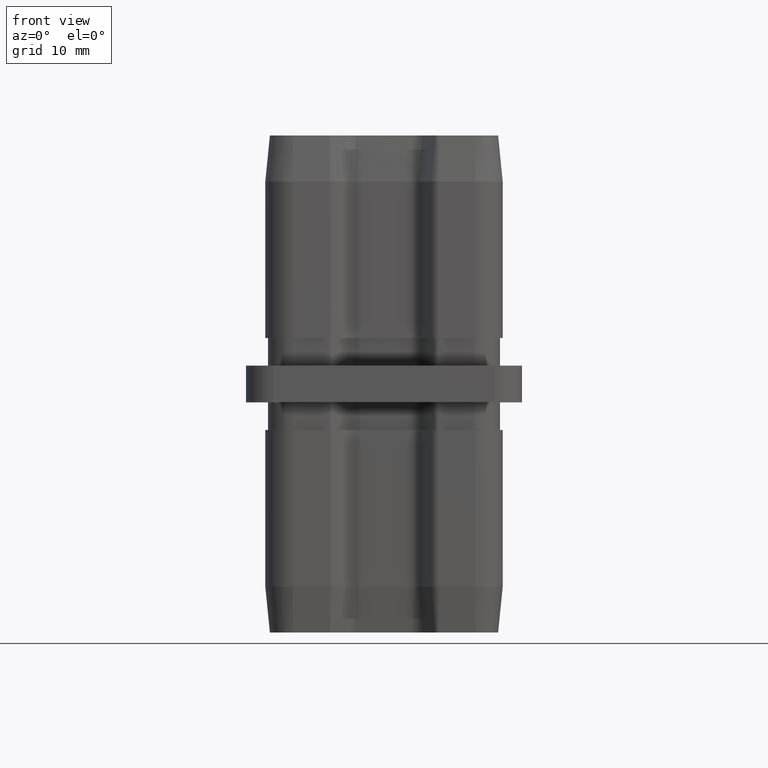
[diagram: clean part render]
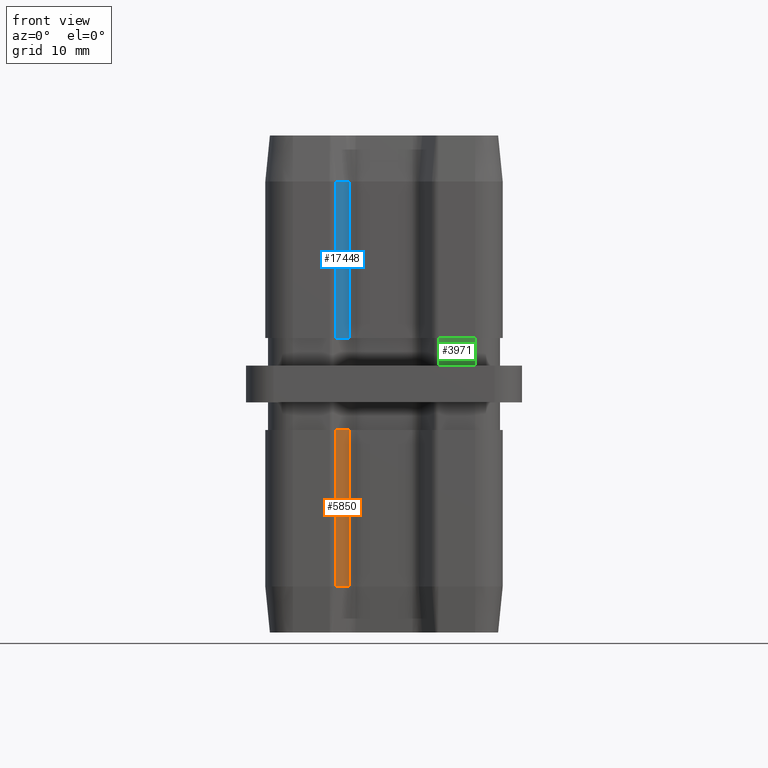
[diagram: same view with three faces highlighted in distinct colors, each labeled with its STEP entity id]
A machine part, front view with three faces highlighted in distinct colors.
Their STEP definitions:

[orange] entity #5850 — the highlighted planar face has unit normal (-0.7071, 0.7071, 0).
#430 = EDGE_CURVE ( 'NONE', #20154, #23990, #8736, .T. ) ;
#1363 = CARTESIAN_POINT ( 'NONE',  ( -5.207106781186544400, -22.60710678118655200, -22.00000000000000700 ) ) ;
#2066 = DIRECTION ( 'NONE',  ( -0.7071067811865484600, 0.7071067811865465700, 0.0000000000000000000 ) ) ;
#2141 = ORIENTED_EDGE ( 'NONE', *, *, #26574, .T. ) ;
#3837 = EDGE_CURVE ( 'NONE', #8081, #23990, #17745, .T. ) ;
#3948 = VECTOR ( 'NONE', #8808, 1000.000000000000000 ) ;
#3987 = VERTEX_POINT ( 'NONE', #4220 ) ;
#4220 = CARTESIAN_POINT ( 'NONE',  ( -3.792893218813467600, -21.19289321881346300, -5.000000000000000000 ) ) ;
#5033 = DIRECTION ( 'NONE',  ( -0.7071067811865462400, -0.7071067811865489100, 0.0000000000000000000 ) ) ;
#5850 = ADVANCED_FACE ( 'NONE', ( #23953 ), #12433, .F. ) ;
#6784 = VECTOR ( 'NONE', #14350, 1000.000000000000000 ) ;
#7898 = CARTESIAN_POINT ( 'NONE',  ( -5.207106781186544400, -22.60710678118655200, 27.00000000000000000 ) ) ;
#8081 = VERTEX_POINT ( 'NONE', #16026 ) ;
#8736 = LINE ( 'NONE', #7898, #6784 ) ;
#8808 = DIRECTION ( 'NONE',  ( -0.7071067811865462400, -0.7071067811865489100, 0.0000000000000000000 ) ) ;
#8899 = CARTESIAN_POINT ( 'NONE',  ( -3.792893218813467600, -21.19289321881346300, -5.000000000000000000 ) ) ;
#9613 = ORIENTED_EDGE ( 'NONE', *, *, #25109, .T. ) ;
#12433 = PLANE ( 'NONE',  #23197 ) ;
#12470 = EDGE_LOOP ( 'NONE', ( #21617, #2141, #9613, #25742 ) ) ;
#14350 = DIRECTION ( 'NONE',  ( 0.0000000000000000000, 0.0000000000000000000, -1.000000000000000000 ) ) ;
#14496 = CARTESIAN_POINT ( 'NONE',  ( -3.500000000000006700, -20.90000000000000900, 27.00000000000000000 ) ) ;
#15268 = VECTOR ( 'NONE', #19434, 1000.000000000000000 ) ;
#15329 = LINE ( 'NONE', #8899, #3948 ) ;
#16026 = CARTESIAN_POINT ( 'NONE',  ( -3.792893218813460500, -21.19289321881346700, -22.00000000000000000 ) ) ;
#16403 = VECTOR ( 'NONE', #5033, 1000.000000000000000 ) ;
#17745 = LINE ( 'NONE', #19223, #16403 ) ;
#18415 = DIRECTION ( 'NONE',  ( -0.7071067811865465700, -0.7071067811865484600, 0.0000000000000000000 ) ) ;
#19223 = CARTESIAN_POINT ( 'NONE',  ( -3.792893218813460500, -21.19289321881346700, -22.00000000000000000 ) ) ;
#19434 = DIRECTION ( 'NONE',  ( -0.0000000000000000000, -0.0000000000000000000, 1.000000000000000000 ) ) ;
#20154 = VERTEX_POINT ( 'NONE', #26116 ) ;
#21617 = ORIENTED_EDGE ( 'NONE', *, *, #3837, .F. ) ;
#21683 = CARTESIAN_POINT ( 'NONE',  ( -3.792893218813461000, -21.19289321881346300, -1.999999999999998200 ) ) ;
#23197 = AXIS2_PLACEMENT_3D ( 'NONE', #14496, #2066, #18415 ) ;
#23953 = FACE_OUTER_BOUND ( 'NONE', #12470, .T. ) ;
#23990 = VERTEX_POINT ( 'NONE', #1363 ) ;
#25109 = EDGE_CURVE ( 'NONE', #3987, #20154, #15329, .T. ) ;
#25742 = ORIENTED_EDGE ( 'NONE', *, *, #430, .T. ) ;
#26096 = LINE ( 'NONE', #21683, #15268 ) ;
#26116 = CARTESIAN_POINT ( 'NONE',  ( -5.207106781186548800, -22.60710678118655200, -5.000000000000000000 ) ) ;
#26574 = EDGE_CURVE ( 'NONE', #8081, #3987, #26096, .T. ) ;

[blue] entity #17448 — the highlighted planar face has unit normal (-0.7071, 0.7071, 0).
#663 = EDGE_CURVE ( 'NONE', #23617, #5510, #5135, .T. ) ;
#3303 = CARTESIAN_POINT ( 'NONE',  ( -3.792893218813461000, -21.19289321881346300, 27.00000000000000000 ) ) ;
#4110 = FACE_OUTER_BOUND ( 'NONE', #16216, .T. ) ;
#4371 = CARTESIAN_POINT ( 'NONE',  ( -5.207106781186541700, -22.60710678118655500, 22.00000000000000000 ) ) ;
#5007 = ORIENTED_EDGE ( 'NONE', *, *, #20753, .T. ) ;
#5135 = LINE ( 'NONE', #8652, #16157 ) ;
#5510 = VERTEX_POINT ( 'NONE', #4371 ) ;
#5698 = VECTOR ( 'NONE', #8871, 1000.000000000000000 ) ;
#6855 = ORIENTED_EDGE ( 'NONE', *, *, #663, .T. ) ;
#6958 = EDGE_CURVE ( 'NONE', #13555, #13903, #16019, .T. ) ;
#8100 = PLANE ( 'NONE',  #17873 ) ;
#8569 = DIRECTION ( 'NONE',  ( -0.7071067811865462400, -0.7071067811865489100, 0.0000000000000000000 ) ) ;
#8652 = CARTESIAN_POINT ( 'NONE',  ( -3.792893218813460500, -21.19289321881346700, 22.00000000000000000 ) ) ;
#8871 = DIRECTION ( 'NONE',  ( 0.0000000000000000000, 0.0000000000000000000, -1.000000000000000000 ) ) ;
#9180 = CARTESIAN_POINT ( 'NONE',  ( -3.792893218813467600, -21.19289321881346300, 5.000000000000000000 ) ) ;
#9247 = VECTOR ( 'NONE', #11508, 1000.000000000000000 ) ;
#9573 = DIRECTION ( 'NONE',  ( -0.7071067811865465700, -0.7071067811865484600, 0.0000000000000000000 ) ) ;
#9770 = ORIENTED_EDGE ( 'NONE', *, *, #18163, .T. ) ;
#11508 = DIRECTION ( 'NONE',  ( -0.0000000000000000000, -0.0000000000000000000, 1.000000000000000000 ) ) ;
#12464 = ORIENTED_EDGE ( 'NONE', *, *, #6958, .F. ) ;
#13497 = VECTOR ( 'NONE', #18043, 1000.000000000000000 ) ;
#13549 = LINE ( 'NONE', #17130, #5698 ) ;
#13555 = VERTEX_POINT ( 'NONE', #19832 ) ;
#13903 = VERTEX_POINT ( 'NONE', #25569 ) ;
#14375 = CARTESIAN_POINT ( 'NONE',  ( -3.792893218813460500, -21.19289321881346700, 22.00000000000000000 ) ) ;
#16019 = LINE ( 'NONE', #9180, #13497 ) ;
#16157 = VECTOR ( 'NONE', #8569, 1000.000000000000000 ) ;
#16216 = EDGE_LOOP ( 'NONE', ( #5007, #6855, #9770, #12464 ) ) ;
#17130 = CARTESIAN_POINT ( 'NONE',  ( -5.207106781186544400, -22.60710678118655200, 27.00000000000000000 ) ) ;
#17448 = ADVANCED_FACE ( 'NONE', ( #4110 ), #8100, .F. ) ;
#17873 = AXIS2_PLACEMENT_3D ( 'NONE', #23585, #19841, #9573 ) ;
#18043 = DIRECTION ( 'NONE',  ( -0.7071067811865462400, -0.7071067811865489100, 0.0000000000000000000 ) ) ;
#18163 = EDGE_CURVE ( 'NONE', #5510, #13903, #13549, .T. ) ;
#19832 = CARTESIAN_POINT ( 'NONE',  ( -3.792893218813467600, -21.19289321881346300, 5.000000000000000000 ) ) ;
#19841 = DIRECTION ( 'NONE',  ( -0.7071067811865484600, 0.7071067811865465700, 0.0000000000000000000 ) ) ;
#20272 = LINE ( 'NONE', #3303, #9247 ) ;
#20753 = EDGE_CURVE ( 'NONE', #13555, #23617, #20272, .T. ) ;
#23585 = CARTESIAN_POINT ( 'NONE',  ( -3.500000000000006700, -20.90000000000000900, 27.00000000000000000 ) ) ;
#23617 = VERTEX_POINT ( 'NONE', #14375 ) ;
#25569 = CARTESIAN_POINT ( 'NONE',  ( -5.207106781186544400, -22.60710678118655200, 5.000000000000000900 ) ) ;

[green] entity #3971 — the highlighted planar face has unit normal (-0, 1, 0).
#553 = DIRECTION ( 'NONE',  ( -1.000000000000000000, -8.704548039004547000E-016, 0.0000000000000000000 ) ) ;
#1156 = ORIENTED_EDGE ( 'NONE', *, *, #22841, .F. ) ;
#1469 = FACE_OUTER_BOUND ( 'NONE', #25668, .T. ) ;
#1735 = LINE ( 'NONE', #3634, #25884 ) ;
#2136 = EDGE_CURVE ( 'NONE', #6644, #15121, #22668, .T. ) ;
#2547 = CARTESIAN_POINT ( 'NONE',  ( 9.899999999999991500, -22.59999999999999400, 5.000000000000000000 ) ) ;
#3575 = DIRECTION ( 'NONE',  ( -8.704548039004547000E-016, 1.000000000000000000, 0.0000000000000000000 ) ) ;
#3634 = CARTESIAN_POINT ( 'NONE',  ( 9.899999999999991500, -22.59999999999999400, 2.000000000000000000 ) ) ;
#3971 = ADVANCED_FACE ( 'NONE', ( #1469 ), #14016, .F. ) ;
#5478 = CARTESIAN_POINT ( 'NONE',  ( 5.914213562373093100, -22.59999999999999800, 5.000000000000000000 ) ) ;
#5717 = VECTOR ( 'NONE', #11120, 1000.000000000000000 ) ;
#6644 = VERTEX_POINT ( 'NONE', #11995 ) ;
#7742 = DIRECTION ( 'NONE',  ( -1.000000000000000000, -8.704548039004547000E-016, 0.0000000000000000000 ) ) ;
#9106 = CARTESIAN_POINT ( 'NONE',  ( 9.899999999999991500, -22.59999999999999400, 5.000000000000000000 ) ) ;
#9431 = DIRECTION ( 'NONE',  ( 0.0000000000000000000, 0.0000000000000000000, -1.000000000000000000 ) ) ;
#10568 = LINE ( 'NONE', #2547, #12864 ) ;
#11120 = DIRECTION ( 'NONE',  ( 0.0000000000000000000, 0.0000000000000000000, -1.000000000000000000 ) ) ;
#11463 = ORIENTED_EDGE ( 'NONE', *, *, #19643, .T. ) ;
#11995 = CARTESIAN_POINT ( 'NONE',  ( 9.899999999999991500, -22.59999999999999400, 5.000000000000000000 ) ) ;
#12209 = CARTESIAN_POINT ( 'NONE',  ( 5.914213562373093100, -22.59999999999999800, 5.000000000000000000 ) ) ;
#12864 = VECTOR ( 'NONE', #553, 1000.000000000000000 ) ;
#13161 = ORIENTED_EDGE ( 'NONE', *, *, #2136, .F. ) ;
#14016 = PLANE ( 'NONE',  #23726 ) ;
#14709 = EDGE_CURVE ( 'NONE', #23626, #22931, #17189, .T. ) ;
#15121 = VERTEX_POINT ( 'NONE', #20707 ) ;
#17189 = LINE ( 'NONE', #5478, #26350 ) ;
#19643 = EDGE_CURVE ( 'NONE', #6644, #23626, #10568, .T. ) ;
#20707 = CARTESIAN_POINT ( 'NONE',  ( 9.899999999999991500, -22.59999999999999400, 2.000000000000000000 ) ) ;
#20962 = CARTESIAN_POINT ( 'NONE',  ( 5.914213562373093100, -22.59999999999999800, 2.000000000000000000 ) ) ;
#22668 = LINE ( 'NONE', #9106, #5717 ) ;
#22841 = EDGE_CURVE ( 'NONE', #15121, #22931, #1735, .T. ) ;
#22931 = VERTEX_POINT ( 'NONE', #20962 ) ;
#23626 = VERTEX_POINT ( 'NONE', #12209 ) ;
#23726 = AXIS2_PLACEMENT_3D ( 'NONE', #26604, #3575, #7742 ) ;
#24530 = ORIENTED_EDGE ( 'NONE', *, *, #14709, .T. ) ;
#25668 = EDGE_LOOP ( 'NONE', ( #13161, #11463, #24530, #1156 ) ) ;
#25884 = VECTOR ( 'NONE', #26395, 1000.000000000000000 ) ;
#26350 = VECTOR ( 'NONE', #9431, 1000.000000000000000 ) ;
#26395 = DIRECTION ( 'NONE',  ( -1.000000000000000000, -8.704548039004547000E-016, 0.0000000000000000000 ) ) ;
#26604 = CARTESIAN_POINT ( 'NONE',  ( 9.899999999999991500, -22.59999999999999400, 5.000000000000000000 ) ) ;